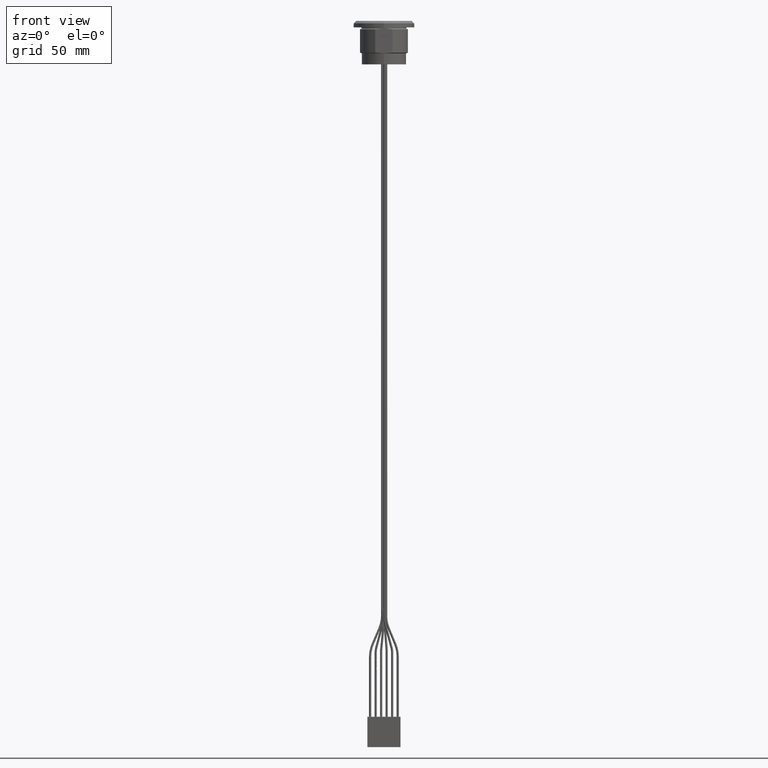
[diagram: clean part render]
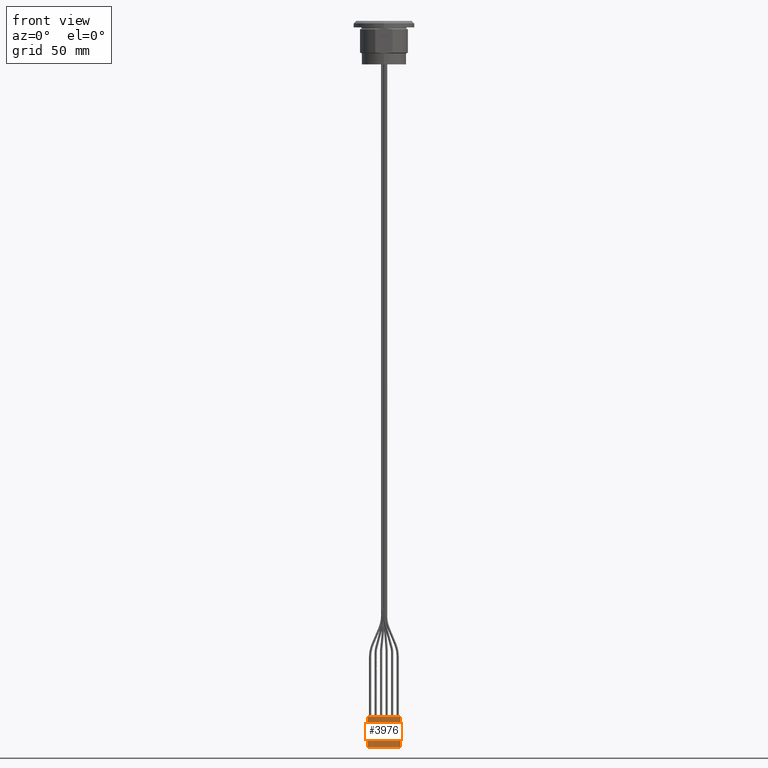
[diagram: same view with one face highlighted and labeled with its STEP entity id]
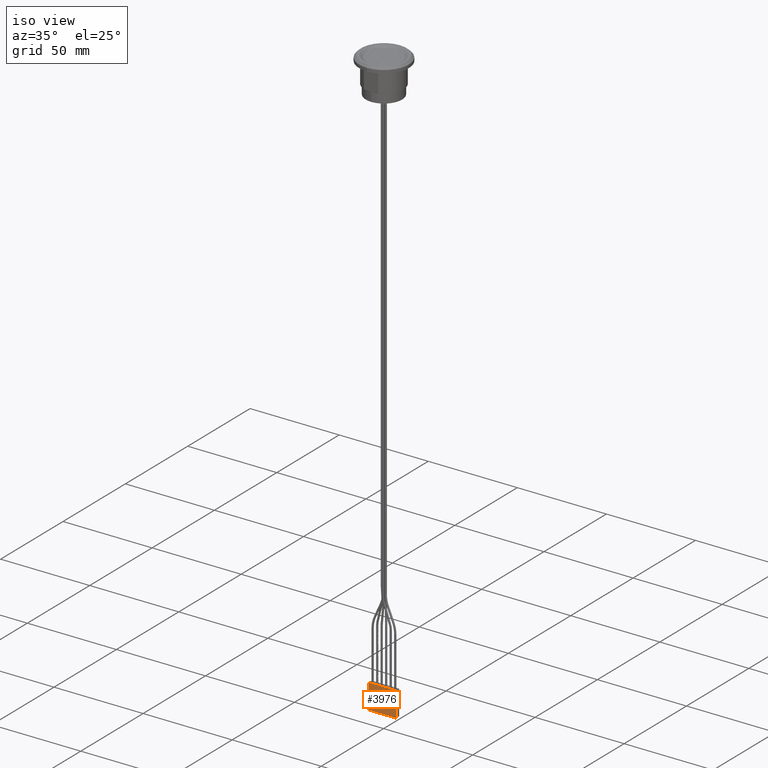
[diagram: same view with one face highlighted and labeled with its STEP entity id]
A machine part, front view. The second image highlights one B-rep face of the part: STEP entity #3976.
A second angle (iso view) of the same face is appended — the face is thin or edge-on in the first view.
In plain terms, the highlighted planar face has unit normal (0, -1, 0).
Its self-contained STEP definition (entity closure, byte-faithful):
#148=PLANE('',#4359);
#396=FACE_OUTER_BOUND('',#619,.T.);
#619=EDGE_LOOP('',(#3351,#3352,#3353,#3354));
#1087=LINE('',#7259,#1485);
#1088=LINE('',#7261,#1486);
#1089=LINE('',#7263,#1487);
#1090=LINE('',#7264,#1488);
#1485=VECTOR('',#5237,10.);
#1486=VECTOR('',#5238,10.);
#1487=VECTOR('',#5239,10.);
#1488=VECTOR('',#5240,10.);
#1943=VERTEX_POINT('',#7257);
#1944=VERTEX_POINT('',#7258);
#1945=VERTEX_POINT('',#7260);
#1946=VERTEX_POINT('',#7262);
#2450=EDGE_CURVE('',#1943,#1944,#1087,.T.);
#2451=EDGE_CURVE('',#1944,#1945,#1088,.T.);
#2452=EDGE_CURVE('',#1945,#1946,#1089,.T.);
#2453=EDGE_CURVE('',#1946,#1943,#1090,.T.);
#3351=ORIENTED_EDGE('',*,*,#2450,.T.);
#3352=ORIENTED_EDGE('',*,*,#2451,.T.);
#3353=ORIENTED_EDGE('',*,*,#2452,.T.);
#3354=ORIENTED_EDGE('',*,*,#2453,.T.);
#3976=ADVANCED_FACE('',(#396),#148,.T.);
#4359=AXIS2_PLACEMENT_3D('',#7256,#5235,#5236);
#5235=DIRECTION('center_axis',(6.12718561868524E-15,-1.,1.22099352957333E-15));
#5236=DIRECTION('ref_axis',(-1.,-6.12718561868524E-15,-6.78710559975919E-16));
#5237=DIRECTION('',(1.,6.12718561868524E-15,6.78710559975919E-16));
#5238=DIRECTION('',(-5.99408915359844E-16,1.22099352957332E-15,1.));
#5239=DIRECTION('',(-1.,-6.12718561868524E-15,-6.78710559975919E-16));
#5240=DIRECTION('',(7.58012204592009E-16,-1.22099352957332E-15,-1.));
#7256=CARTESIAN_POINT('Origin',(-3.2754457162253,3.70328642343447,-481.288146234769));
#7257=CARTESIAN_POINT('',(-10.8954457162253,3.70328642343441,-488.288146234769));
#7258=CARTESIAN_POINT('',(4.3445542837747,3.7032864234345,-488.288146234769));
#7259=CARTESIAN_POINT('',(-10.8954457162253,3.70328642343441,-488.288146234769));
#7260=CARTESIAN_POINT('',(4.34455428377469,3.70328642343452,-474.288146234769));
#7261=CARTESIAN_POINT('',(4.3445542837747,3.7032864234345,-488.288146234769));
#7262=CARTESIAN_POINT('',(-10.8954457162253,3.70328642343443,-474.288146234769));
#7263=CARTESIAN_POINT('',(4.34455428377469,3.70328642343452,-474.288146234769));
#7264=CARTESIAN_POINT('',(-10.8954457162253,3.70328642343443,-474.288146234769));